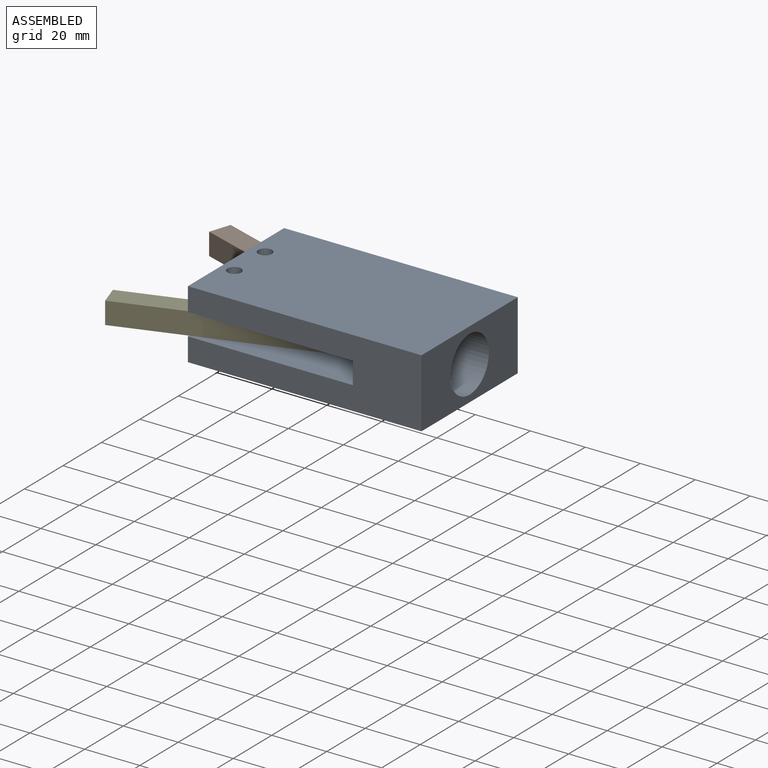
[diagram: assembled view]
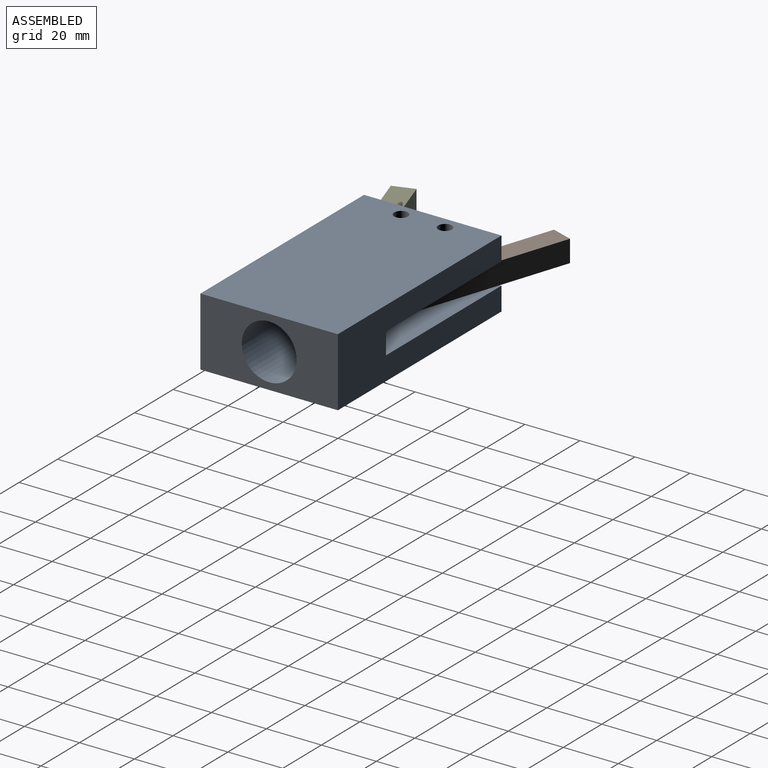
[diagram: assembled view, second angle]
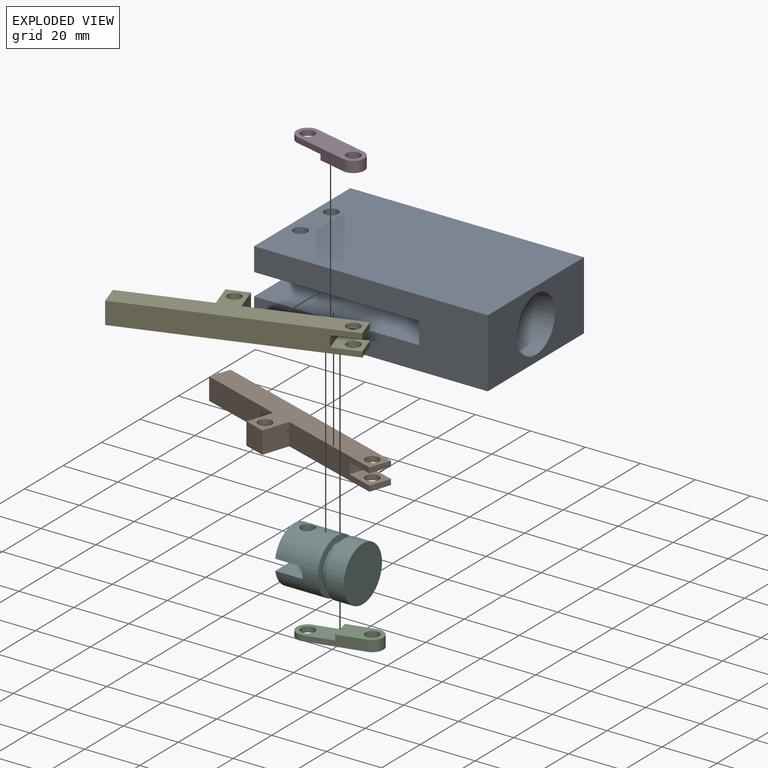
[diagram: exploded view]
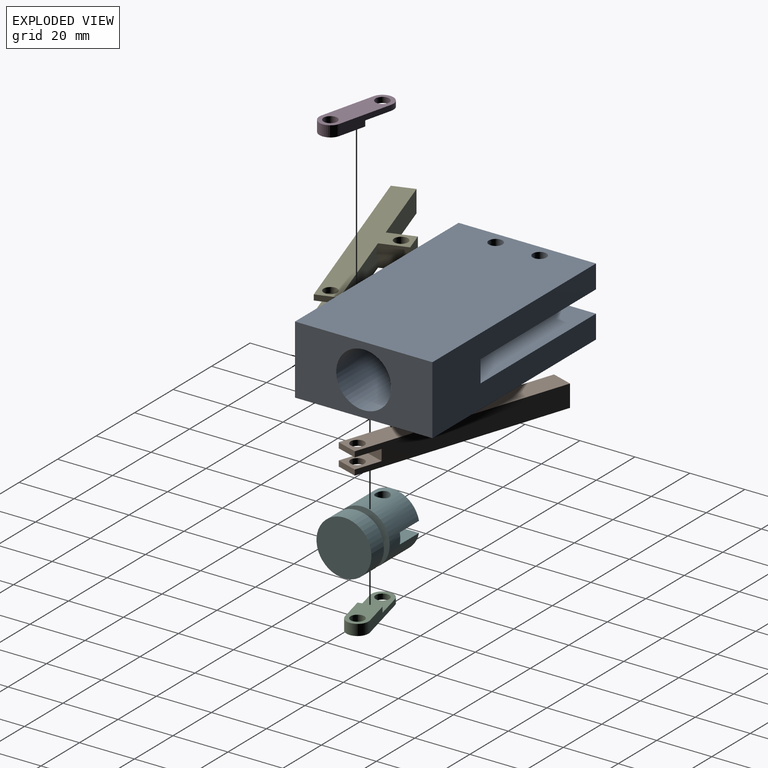
[diagram: exploded view, second angle]
ASSEMBLY  parts=6 mates=7
PART A: 18 faces, bbox 85x50x25 mm
  f0: plane 15.84x8mm, normal (-1,0,0), area 122.2mm2, adj f2,f12,f13,f16
  f1: plane 50x8.5mm, normal (-1,0,0), area 425mm2, adj f2,f6,f11,f12
  f2: plane 85x25mm, normal (0,1,0), area 1645mm2, adj f0,f1,f5,f9,f10,f11,f12,f13
  f3: cylinder r=2.5mm len=8.5mm, axis (0,0,-1), area 133.5mm2, adj f10,f13
  f4: cylinder r=2.5mm len=8.5mm, axis (0,0,-1), area 133.5mm2, adj f10,f13
  f5: plane 50x8.5mm, normal (-1,0,0), area 425mm2, adj f2,f6,f10,f13
  f6: plane 85x25mm, normal (0,-1,0), area 1645mm2, adj f1,f5,f9,f10,f11,f12,f13,f14
  f7: cylinder r=2.5mm len=8.5mm, axis (0,0,-1), area 133.5mm2, adj f11,f12
  f8: cylinder r=2.5mm len=8.5mm, axis (0,0,-1), area 133.5mm2, adj f11,f12
  f9: plane 50x25mm, normal (1,0,0), area 935.8mm2, adj f2,f6,f10,f11,f16
  f10: plane 85x50mm, normal (0,0,1), area 4210.7mm2, adj f2,f3,f4,f5,f6,f9
  f11: plane 85x50mm, normal (0,0,-1), area 4210.7mm2, adj f1,f2,f6,f7,f8,f9
  f12: plane 60x50mm, normal (0,0,1), area 2685.8mm2, adj f0,f1,f2,f6,f7,f8,f14,f15
  f13: plane 60x50mm, normal (0,0,-1), area 2685.8mm2, adj f0,f2,f3,f4,f5,f6,f14,f16
  f14: plane 15.84x8mm, normal (-1,0,0), area 122.2mm2, adj f6,f12,f13,f16
  f15: plane 18.33x6mm, normal (1,0,0), area 79.3mm2, adj f12,f16
  f16: cylinder r=10mm len=40mm, axis (1,0,0), area 2266.4mm2, adj f0,f9,f12,f13,f14,f15,f17
  f17: plane 18.33x6mm, normal (1,0,0), area 79.3mm2, adj f13,f16
PART B: 17 faces, bbox 80x18x8 mm
  f0: plane 8x2mm, normal (1,0,0), area 16mm2, adj f2,f8,f12,f16
  f1: cylinder r=2.5mm len=5mm, axis (0,0,-1), area 31.4mm2, adj f12,f16
  f2: plane 80x8mm, normal (0,1,0), area 600mm2, adj f0,f3,f10,f12,f13,f14,f15,f16
  f3: plane 8x8mm, normal (-1,0,0), area 64mm2, adj f2,f4,f12,f13
  f4: plane 32x8mm, normal (0,-1,0), area 256mm2, adj f3,f5,f12,f13
  f5: plane 10x8mm, normal (-1,0,0), area 80mm2, adj f4,f6,f12,f13
  f6: plane 8x8mm, normal (0,-1,0), area 64mm2, adj f5,f7,f12,f13
  f7: plane 10x8mm, normal (1,0,0), area 80mm2, adj f6,f8,f12,f13
  f8: plane 40x8mm, normal (0,-1,0), area 280mm2, adj f0,f7,f10,f12,f13,f14,f15,f16
  f9: cylinder r=2.5mm len=8mm, axis (0,0,-1), area 125.7mm2, adj f12,f13
  f10: plane 8x2mm, normal (1,0,0), area 16mm2, adj f2,f8,f13,f14
  f11: cylinder r=2.5mm len=5mm, axis (0,0,-1), area 31.4mm2, adj f13,f14
  f12: plane 80x18mm, normal (0,0,1), area 680.7mm2, adj f0,f1,f2,f3,f4,f5,f6,f7
  f13: plane 80x18mm, normal (0,0,-1), area 680.7mm2, adj f2,f3,f4,f5,f6,f7,f8,f9
  f14: plane 10x8mm, normal (0,0,1), area 60.4mm2, adj f2,f8,f10,f11,f15
  f15: plane 8x4mm, normal (1,0,0), area 32mm2, adj f2,f8,f14,f16
  f16: plane 10x8mm, normal (0,0,-1), area 60.4mm2, adj f0,f1,f2,f8,f15
PART C: 10 faces, bbox 18x26x4 mm
  f0: plane 18x10mm, normal (0.87,0.49,0), area 61.8mm2, adj f1,f2,f4,f6,f8,f9
  f1: plane 14.94x12.5mm, normal (0,0,1), area 87.9mm2, adj f0,f4,f5,f7,f9
  f2: cylinder r=4mm len=7.5mm, axis (0,0,-1), area 25.1mm2, adj f0,f5,f6,f8
  f3: cylinder r=2.5mm len=5mm, axis (0,0,1), area 31.4mm2, adj f6,f8
  f4: cylinder r=4mm len=7.5mm, axis (0,0,-1), area 50.3mm2, adj f0,f1,f5,f6
  f5: plane 18x10mm, normal (-0.87,-0.49,0), area 61.8mm2, adj f1,f2,f4,f6,f8,f9
  f6: plane 26x18mm, normal (0,0,-1), area 175.7mm2, adj f0,f2,f3,f4,f5,f7
  f7: cylinder r=2.5mm len=5mm, axis (0,0,1), area 62.8mm2, adj f1,f6
  f8: plane 14.94x12.5mm, normal (0,0,1), area 87.9mm2, adj f0,f2,f3,f5,f9
  f9: plane 6.99x3.89mm, normal (0.49,-0.87,0), area 16mm2, adj f0,f1,f5,f8
PART D: same geometry as C
PART E: same geometry as B
PART F: 13 faces, bbox 25x20x20 mm
  f0: plane 19.6x8mm, normal (-1,0,0), area 117.3mm2, adj f1,f10
  f1: cylinder r=10mm len=20mm, axis (1,0,0), area 855.1mm2, adj f0,f2,f6,f8,f9,f10,f11,f12
  f2: cylinder r=2.5mm len=8mm, axis (0,0,1), area 123.2mm2, adj f1,f10
  f3: cylinder r=10mm len=20mm, axis (1,0,0), area 409.7mm2, adj f4,f5
  f4: plane 20x20mm, normal (1,0,0), area 314.2mm2, adj f3
  f5: cone r=10.2mm half-angle=84.3deg, axis (1,0,0), area 128.5mm2, adj f3,f7
  f6: cone r=10.2mm half-angle=84.3deg, axis (-1,0,0), area 128.5mm2, adj f1,f7
  f7: cylinder r=7.7mm len=15.4mm, axis (1,0,0), area 121mm2, adj f5,f6
  f8: plane 19.6x8mm, normal (-1,0,0), area 117.3mm2, adj f1,f11
  f9: cylinder r=2.5mm len=8mm, axis (0,0,1), area 123.2mm2, adj f1,f11
  f10: plane 19.6x10mm, normal (0,0,-1), area 176.3mm2, adj f0,f1,f2,f12
  f11: plane 19.6x10mm, normal (0,0,1), area 176.3mm2, adj f1,f8,f9,f12
  f12: plane 20x4mm, normal (-1,0,0), area 79.5mm2, adj f1,f10,f11
PLACE A at identity fixed
PLACE B rot(axis=(0,0,-1),18.3deg) t=(-0.99,9.83,0)mm
PLACE C rot(axis=(0,0,-1),105.2deg) t=(72.13,77.19,0)mm
PLACE D rot(axis=(-0.61,-0.79,0),180deg) t=(72.13,-77.19,0)mm
PLACE E rot(axis=(-0.99,-0.16,0),180deg) t=(-0.99,-9.83,0)mm
PLACE F t=(-28.88,0,0)mm
MATE revolute C.f2 <-> F.f2  axis (0,0,-1) through (51.12,0,-2)mm
MATE slider F.f1 <-> A.f16  axis (1,0,0) through (71.12,0,0)mm
MATE revolute E.f9 <-> A.f4  axis (0,0,1) through (30,-8,4)mm
MATE revolute B.f9 <-> A.f3  axis (0,0,1) through (30,8,4)mm
MATE revolute E.f1 <-> D.f4  axis (0,0,-1) through (71.12,-4.92,2)mm
MATE revolute D.f3 <-> C.f3  axis (0,0,-1) through (51.12,0,0)mm
MATE revolute C.f4 <-> B.f1  axis (0,0,1) through (71.12,4.92,2)mm
